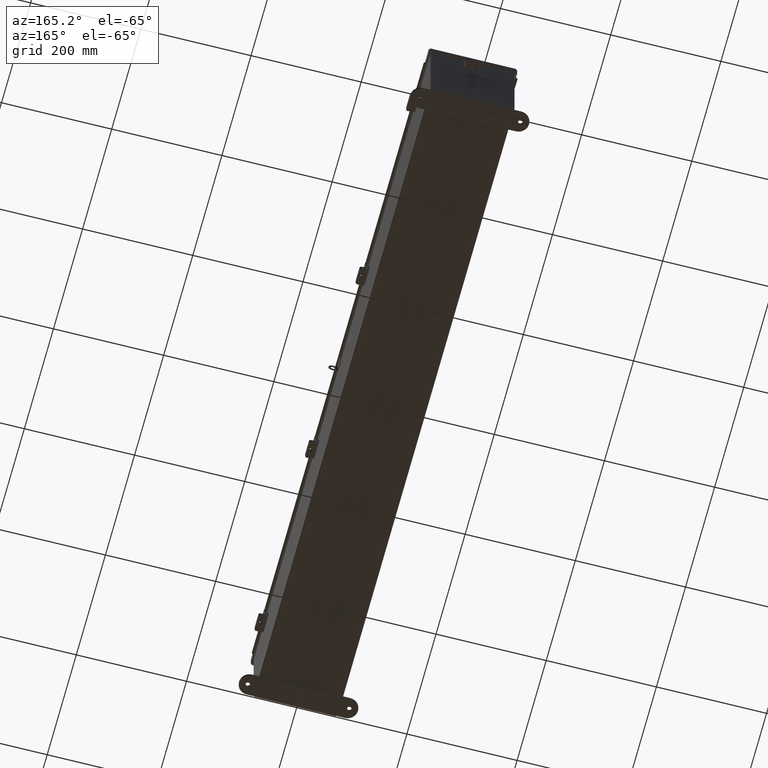
[diagram: clean part render]
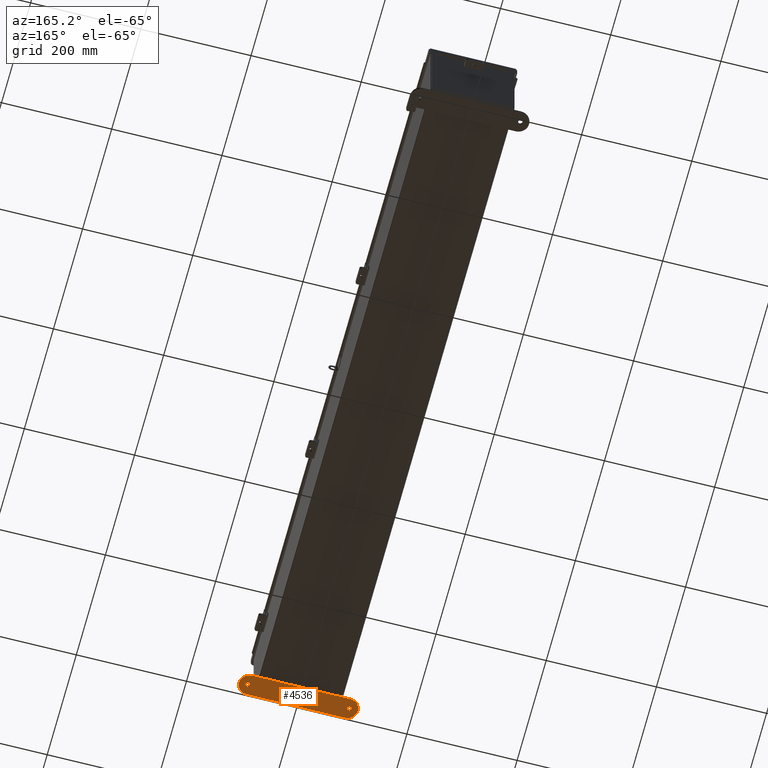
[diagram: same view with one face highlighted and labeled with its STEP entity id]
A machine part, auxiliary view. The second image highlights one B-rep face of the part: STEP entity #4536.
In plain terms, the highlighted planar face has unit normal (0, 0, -1).
Its self-contained STEP definition (entity closure, byte-faithful):
#367 = EDGE_LOOP ( 'NONE', ( #8040, #16327, #29413, #17977, #30652 ) ) ;
#657 = CIRCLE ( 'NONE', #10505, 0.1564999999999992800 ) ;
#752 = CIRCLE ( 'NONE', #24843, 0.7499999999999998900 ) ;
#1806 = CIRCLE ( 'NONE', #22195, 0.1564999999999992800 ) ;
#3034 = DIRECTION ( 'NONE',  ( 0.0000000000000000000, 0.0000000000000000000, 1.000000000000000000 ) ) ;
#3924 = CARTESIAN_POINT ( 'NONE',  ( -3.499999999999998700, 1.162094064949613000, -0.1345000000000000100 ) ) ;
#4459 = DIRECTION ( 'NONE',  ( -0.0000000000000000000, 0.0000000000000000000, -1.000000000000000000 ) ) ;
#4536 = ADVANCED_FACE ( 'NONE', ( #20902, #11611, #13383 ), #12958, .T. ) ;
#4542 = CARTESIAN_POINT ( 'NONE',  ( 3.499999999999998700, -0.3379059350503883000, -0.1345000000000000100 ) ) ;
#6123 = AXIS2_PLACEMENT_3D ( 'NONE', #15965, #35715, #18822 ) ;
#6663 = EDGE_CURVE ( 'NONE', #31285, #28482, #25183, .T. ) ;
#6700 = EDGE_CURVE ( 'NONE', #32797, #31285, #15858, .T. ) ;
#7055 = CARTESIAN_POINT ( 'NONE',  ( 4.250000000000000900, 0.4120940649496125900, -0.1345000000000000100 ) ) ;
#7160 = CIRCLE ( 'NONE', #6123, 0.7500000000000010000 ) ;
#7221 = EDGE_CURVE ( 'NONE', #11533, #30579, #22287, .T. ) ;
#7369 = EDGE_LOOP ( 'NONE', ( #30987, #11375 ) ) ;
#7545 = CARTESIAN_POINT ( 'NONE',  ( -3.499999999999998700, 1.162094064949613000, -0.1345000000000000100 ) ) ;
#8040 = ORIENTED_EDGE ( 'NONE', *, *, #36288, .F. ) ;
#8846 = CARTESIAN_POINT ( 'NONE',  ( -3.499999999999998700, -0.3379059350503874600, -0.1345000000000000100 ) ) ;
#9064 = VERTEX_POINT ( 'NONE', #8846 ) ;
#10018 = AXIS2_PLACEMENT_3D ( 'NONE', #29323, #12417, #32175 ) ;
#10150 = CARTESIAN_POINT ( 'NONE',  ( 3.625000000000000400, 0.4120940649496087600, -0.1345000000000000100 ) ) ;
#10505 = AXIS2_PLACEMENT_3D ( 'NONE', #10150, #29892, #12977 ) ;
#10639 = DIRECTION ( 'NONE',  ( 0.0000000000000000000, 0.0000000000000000000, 1.000000000000000000 ) ) ;
#11375 = ORIENTED_EDGE ( 'NONE', *, *, #7221, .T. ) ;
#11533 = VERTEX_POINT ( 'NONE', #21447 ) ;
#11611 = FACE_BOUND ( 'NONE', #7369, .T. ) ;
#12277 = EDGE_CURVE ( 'NONE', #28482, #9064, #752, .T. ) ;
#12417 = DIRECTION ( 'NONE',  ( -0.0000000000000000000, -0.0000000000000000000, -1.000000000000000000 ) ) ;
#12496 = CARTESIAN_POINT ( 'NONE',  ( 3.468500000000001000, 0.4120940649496087600, -0.1345000000000000100 ) ) ;
#12958 = PLANE ( 'NONE',  #24084 ) ;
#12977 = DIRECTION ( 'NONE',  ( -1.000000000000000000, 0.0000000000000000000, 0.0000000000000000000 ) ) ;
#13068 = DIRECTION ( 'NONE',  ( 0.0000000000000000000, 0.0000000000000000000, 1.000000000000000000 ) ) ;
#13383 = FACE_BOUND ( 'NONE', #22255, .T. ) ;
#14979 = LINE ( 'NONE', #19886, #21516 ) ;
#15593 = EDGE_CURVE ( 'NONE', #34418, #34548, #657, .T. ) ;
#15810 = DIRECTION ( 'NONE',  ( -1.000000000000000000, 0.0000000000000000000, 0.0000000000000000000 ) ) ;
#15858 = CIRCLE ( 'NONE', #23737, 0.7500000000000010000 ) ;
#15895 = DIRECTION ( 'NONE',  ( 0.0000000000000000000, 0.0000000000000000000, 1.000000000000000000 ) ) ;
#15965 = CARTESIAN_POINT ( 'NONE',  ( 3.500000000000000000, 0.4120940649496125900, -0.1345000000000000100 ) ) ;
#16327 = ORIENTED_EDGE ( 'NONE', *, *, #19856, .F. ) ;
#17951 = DIRECTION ( 'NONE',  ( 1.000000000000000000, -1.170791997284684700E-016, 0.0000000000000000000 ) ) ;
#17977 = ORIENTED_EDGE ( 'NONE', *, *, #6663, .F. ) ;
#18047 = VERTEX_POINT ( 'NONE', #4542 ) ;
#18822 = DIRECTION ( 'NONE',  ( -1.000000000000000000, 0.0000000000000000000, 0.0000000000000000000 ) ) ;
#18863 = EDGE_CURVE ( 'NONE', #30579, #11533, #1806, .T. ) ;
#19856 = EDGE_CURVE ( 'NONE', #9064, #18047, #14979, .T. ) ;
#19886 = CARTESIAN_POINT ( 'NONE',  ( -3.499999999999998700, -0.3379059350503874600, -0.1345000000000000100 ) ) ;
#19959 = CARTESIAN_POINT ( 'NONE',  ( -3.625000000000000400, 0.4120940649496087600, -0.1345000000000000100 ) ) ;
#20902 = FACE_OUTER_BOUND ( 'NONE', #367, .T. ) ;
#21447 = CARTESIAN_POINT ( 'NONE',  ( -3.781499999999999400, 0.4120940649496087600, -0.1345000000000000100 ) ) ;
#21516 = VECTOR ( 'NONE', #17951, 39.37007874015748100 ) ;
#21664 = CARTESIAN_POINT ( 'NONE',  ( 3.781499999999999400, 0.4120940649496087600, -0.1345000000000000100 ) ) ;
#22195 = AXIS2_PLACEMENT_3D ( 'NONE', #19959, #3034, #22776 ) ;
#22255 = EDGE_LOOP ( 'NONE', ( #30727, #31871 ) ) ;
#22287 = CIRCLE ( 'NONE', #29891, 0.1564999999999992800 ) ;
#22776 = DIRECTION ( 'NONE',  ( -1.000000000000000000, 0.0000000000000000000, 0.0000000000000000000 ) ) ;
#23726 = EDGE_CURVE ( 'NONE', #34548, #34418, #28007, .T. ) ;
#23737 = AXIS2_PLACEMENT_3D ( 'NONE', #27547, #10639, #30380 ) ;
#24084 = AXIS2_PLACEMENT_3D ( 'NONE', #27054, #4459, #15810 ) ;
#24467 = DIRECTION ( 'NONE',  ( -1.000000000000000000, -1.170791997284684700E-016, -0.0000000000000000000 ) ) ;
#24843 = AXIS2_PLACEMENT_3D ( 'NONE', #29976, #13068, #32818 ) ;
#25183 = LINE ( 'NONE', #7545, #31774 ) ;
#25235 = CARTESIAN_POINT ( 'NONE',  ( 3.499999999999998700, 1.162094064949613600, -0.1345000000000000100 ) ) ;
#27054 = CARTESIAN_POINT ( 'NONE',  ( 3.500000000000000000, 0.4120940649496125900, -0.1345000000000000100 ) ) ;
#27547 = CARTESIAN_POINT ( 'NONE',  ( 3.500000000000000000, 0.4120940649496125900, -0.1345000000000000100 ) ) ;
#28007 = CIRCLE ( 'NONE', #10018, 0.1564999999999992800 ) ;
#28482 = VERTEX_POINT ( 'NONE', #3924 ) ;
#29323 = CARTESIAN_POINT ( 'NONE',  ( 3.625000000000000400, 0.4120940649496087600, -0.1345000000000000100 ) ) ;
#29413 = ORIENTED_EDGE ( 'NONE', *, *, #12277, .F. ) ;
#29891 = AXIS2_PLACEMENT_3D ( 'NONE', #32809, #15895, #35629 ) ;
#29892 = DIRECTION ( 'NONE',  ( -0.0000000000000000000, -0.0000000000000000000, -1.000000000000000000 ) ) ;
#29976 = CARTESIAN_POINT ( 'NONE',  ( -3.499999999999998700, 0.4120940649496127000, -0.1345000000000000100 ) ) ;
#30380 = DIRECTION ( 'NONE',  ( -1.000000000000000000, 0.0000000000000000000, 0.0000000000000000000 ) ) ;
#30579 = VERTEX_POINT ( 'NONE', #36116 ) ;
#30652 = ORIENTED_EDGE ( 'NONE', *, *, #6700, .F. ) ;
#30727 = ORIENTED_EDGE ( 'NONE', *, *, #23726, .F. ) ;
#30987 = ORIENTED_EDGE ( 'NONE', *, *, #18863, .T. ) ;
#31285 = VERTEX_POINT ( 'NONE', #25235 ) ;
#31774 = VECTOR ( 'NONE', #24467, 39.37007874015748100 ) ;
#31871 = ORIENTED_EDGE ( 'NONE', *, *, #15593, .F. ) ;
#32175 = DIRECTION ( 'NONE',  ( -1.000000000000000000, 0.0000000000000000000, 0.0000000000000000000 ) ) ;
#32797 = VERTEX_POINT ( 'NONE', #7055 ) ;
#32809 = CARTESIAN_POINT ( 'NONE',  ( -3.625000000000000400, 0.4120940649496087600, -0.1345000000000000100 ) ) ;
#32818 = DIRECTION ( 'NONE',  ( 1.000000000000000000, 0.0000000000000000000, 0.0000000000000000000 ) ) ;
#34418 = VERTEX_POINT ( 'NONE', #12496 ) ;
#34548 = VERTEX_POINT ( 'NONE', #21664 ) ;
#35629 = DIRECTION ( 'NONE',  ( -1.000000000000000000, 0.0000000000000000000, 0.0000000000000000000 ) ) ;
#35715 = DIRECTION ( 'NONE',  ( 0.0000000000000000000, 0.0000000000000000000, 1.000000000000000000 ) ) ;
#36116 = CARTESIAN_POINT ( 'NONE',  ( -3.468500000000001000, 0.4120940649496087600, -0.1345000000000000100 ) ) ;
#36288 = EDGE_CURVE ( 'NONE', #18047, #32797, #7160, .T. ) ;